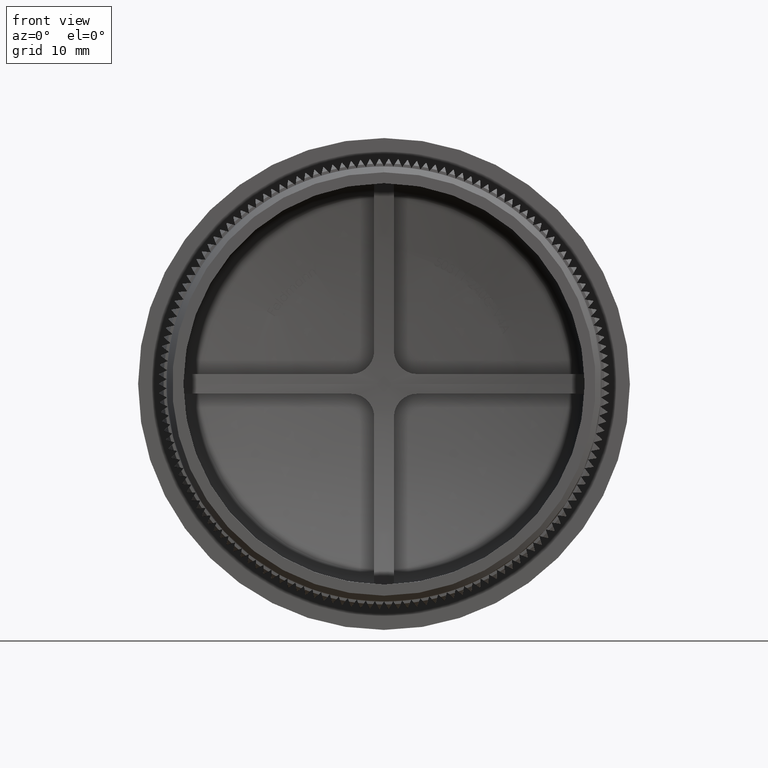
[diagram: clean part render]
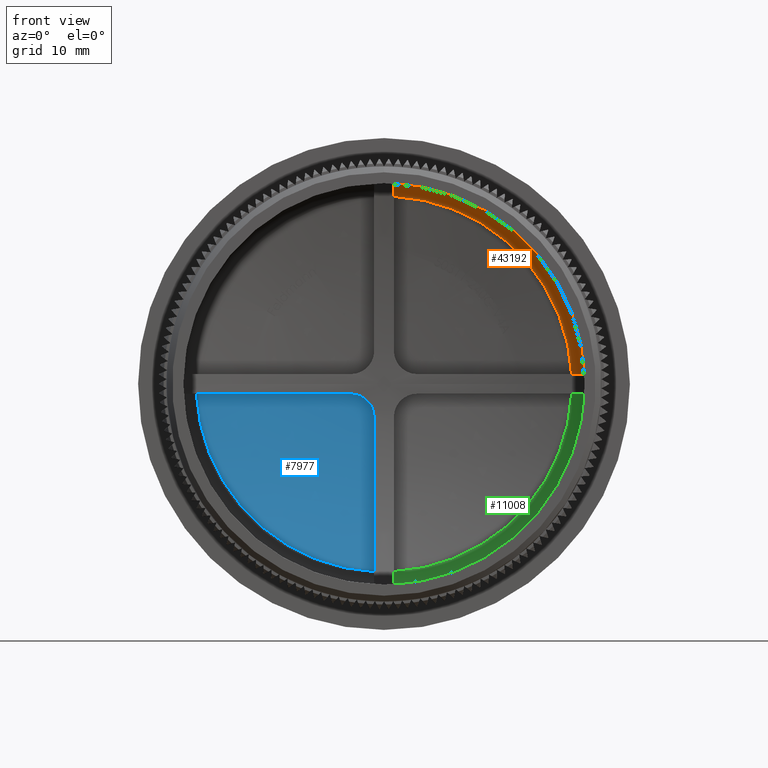
[diagram: same view with three faces highlighted in distinct colors, each labeled with its STEP entity id]
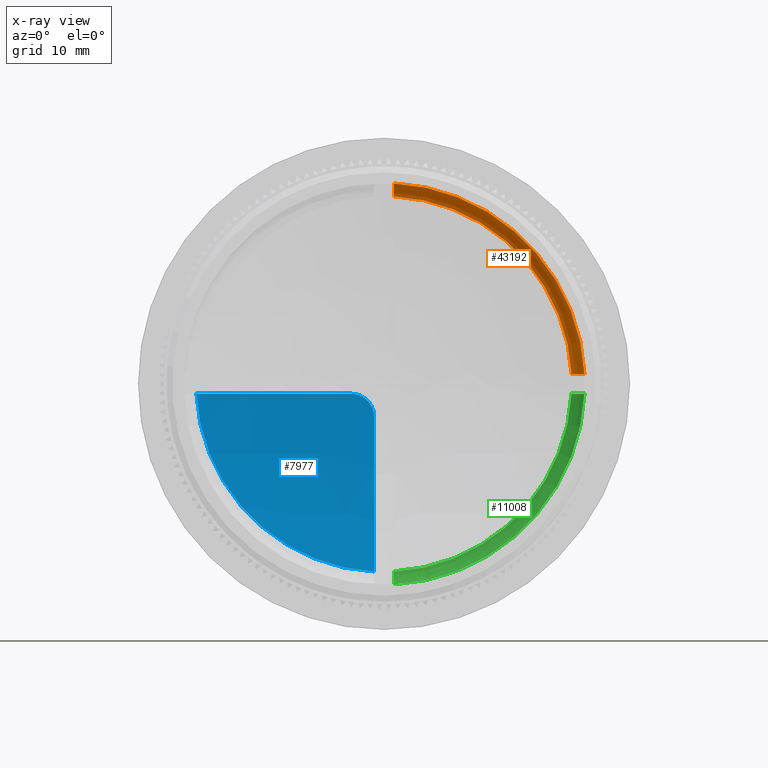
[diagram: x-ray of the same camera — body ghosted, the three highlighted faces saturated]
A machine part, front view with three faces highlighted in distinct colors.
The next image is the same camera in x-ray (body ghosted, the three faces saturated) — at least one of them is partly hidden behind the body in this view.
Their STEP definitions:

[orange] entity #43192 — the highlighted toroidal blend (fillet) surface has major radius 15.8 mm and minor (blend) radius 1.5 mm.
#3102 = CARTESIAN_POINT ( 'NONE',  ( 17.27910587964550300, 13.03454946691719700, 0.8500000000000000900 ) ) ;
#3398 = CARTESIAN_POINT ( 'NONE',  ( 16.75150424406135500, 14.02509194983895900, 0.8499999999999999800 ) ) ;
#4057 = CARTESIAN_POINT ( 'NONE',  ( 16.17451809435572200, 14.31863615773799100, 0.8499999999999999800 ) ) ;
#4351 = CIRCLE ( 'NONE', #14428, 17.29999999999999700 ) ;
#6027 = ORIENTED_EDGE ( 'NONE', *, *, #14768, .T. ) ;
#6493 = DIRECTION ( 'NONE',  ( 0.0000000000000000000, 0.0000000000000000000, -1.000000000000000000 ) ) ;
#6693 = CARTESIAN_POINT ( 'NONE',  ( 17.25208929197144800, 13.19854717968413400, 0.8500000000000000900 ) ) ;
#8376 = CARTESIAN_POINT ( 'NONE',  ( 17.27910587964550600, 12.87208155133243900, 0.8500000000000014200 ) ) ;
#8531 = CARTESIAN_POINT ( 'NONE',  ( 0.0000000000000000000, 14.31863615773802700, 0.0000000000000000000 ) ) ;
#9149 = CARTESIAN_POINT ( 'NONE',  ( 0.0000000000000000000, 12.87208155133243900, 0.0000000000000000000 ) ) ;
#10205 = CARTESIAN_POINT ( 'NONE',  ( 16.87274273745515900, 13.91091311740873100, 0.8500000000000000900 ) ) ;
#10516 = VERTEX_POINT ( 'NONE', #4057 ) ;
#11081 = CIRCLE ( 'NONE', #31480, 16.19683720930232000 ) ;
#11182 = CARTESIAN_POINT ( 'NONE',  ( 0.8500000000000043100, 14.23238707079174500, 16.48934788391042600 ) ) ;
#11931 = DIRECTION ( 'NONE',  ( -0.0000000000000000000, -1.000000000000000000, -0.0000000000000000000 ) ) ;
#12284 = B_SPLINE_CURVE_WITH_KNOTS ( 'NONE', 3,
 ( #34560, #38006, #41218, #3398, #10205, #20912, #23819, #6693, #3102, #27612 ),
 .UNSPECIFIED., .F., .F.,
 ( 4, 2, 2, 2, 4 ),
 ( 0.002250064617710046700, 0.002736585393792514800, 0.003223106169874983300, 0.003709626945957451800, 0.004196147722039919900 ),
 .UNSPECIFIED. ) ;
#13266 = ORIENTED_EDGE ( 'NONE', *, *, #16697, .T. ) ;
#13643 = AXIS2_PLACEMENT_3D ( 'NONE', #9149, #11931, #18997 ) ;
#14094 = CARTESIAN_POINT ( 'NONE',  ( 0.8500000000000042000, 14.31863615773799100, 16.17451809435572200 ) ) ;
#14428 = AXIS2_PLACEMENT_3D ( 'NONE', #19964, #27116, #6493 ) ;
#14768 = EDGE_CURVE ( 'NONE', #33455, #44108, #40512, .T. ) ;
#15072 = TOROIDAL_SURFACE ( 'NONE', #13643, 15.79999999999999500, 1.500000000000000000 ) ;
#15604 = EDGE_LOOP ( 'NONE', ( #31851, #6027, #40200, #13266 ) ) ;
#16697 = EDGE_CURVE ( 'NONE', #10516, #41220, #12284, .T. ) ;
#18997 = DIRECTION ( 'NONE',  ( 0.0000000000000000000, 0.0000000000000000000, -1.000000000000000000 ) ) ;
#19964 = CARTESIAN_POINT ( 'NONE',  ( 0.0000000000000000000, 12.87208155133243900, 0.0000000000000000000 ) ) ;
#20912 = CARTESIAN_POINT ( 'NONE',  ( 17.06977151505013900, 13.65300020471787900, 0.8499999999999999800 ) ) ;
#23819 = CARTESIAN_POINT ( 'NONE',  ( 17.14800501781711300, 13.50614345628086900, 0.8500000000000000900 ) ) ;
#25332 = FACE_OUTER_BOUND ( 'NONE', #15604, .T. ) ;
#27116 = DIRECTION ( 'NONE',  ( 0.0000000000000000000, 1.000000000000000000, 0.0000000000000000000 ) ) ;
#27612 = CARTESIAN_POINT ( 'NONE',  ( 17.27910587964550600, 12.87208155133243900, 0.8500000000000014200 ) ) ;
#27850 = CARTESIAN_POINT ( 'NONE',  ( 0.8500000000000043100, 13.19719481279919100, 17.27910587964545300 ) ) ;
#29010 = DIRECTION ( 'NONE',  ( -0.0000000000000000000, -1.000000000000000000, -0.0000000000000000000 ) ) ;
#31480 = AXIS2_PLACEMENT_3D ( 'NONE', #8531, #29010, #42881 ) ;
#31851 = ORIENTED_EDGE ( 'NONE', *, *, #40427, .F. ) ;
#31920 = CARTESIAN_POINT ( 'NONE',  ( 0.8500000000000043100, 14.04079092929593700, 16.77351254898125500 ) ) ;
#32831 = EDGE_CURVE ( 'NONE', #10516, #44108, #11081, .T. ) ;
#33455 = VERTEX_POINT ( 'NONE', #33587 ) ;
#33587 = CARTESIAN_POINT ( 'NONE',  ( 0.8500000000000045300, 12.87208155133281700, 17.27910587964550600 ) ) ;
#34560 = CARTESIAN_POINT ( 'NONE',  ( 16.17451809435572200, 14.31863615773799100, 0.8499999999999999800 ) ) ;
#37454 = CARTESIAN_POINT ( 'NONE',  ( 0.8500000000000042000, 14.31863615773799100, 16.17451809435572200 ) ) ;
#38006 = CARTESIAN_POINT ( 'NONE',  ( 16.33093632640904500, 14.27578465465936100, 0.8499999999999999800 ) ) ;
#38094 = CARTESIAN_POINT ( 'NONE',  ( 0.8500000000000046400, 13.52319186537919500, 17.16894862938914200 ) ) ;
#38387 = CARTESIAN_POINT ( 'NONE',  ( 0.8500000000000045300, 12.87208155133281700, 17.27910587964550600 ) ) ;
#40200 = ORIENTED_EDGE ( 'NONE', *, *, #32831, .F. ) ;
#40427 = EDGE_CURVE ( 'NONE', #33455, #41220, #4351, .T. ) ;
#40512 = B_SPLINE_CURVE_WITH_KNOTS ( 'NONE', 3,
 ( #38387, #27850, #38094, #31920, #11182, #14094 ),
 .UNSPECIFIED., .F., .F.,
 ( 4, 2, 4 ),
 ( 0.005190190413903147800, 0.006163343080821713900, 0.007136495747740279900 ),
 .UNSPECIFIED. ) ;
#41218 = CARTESIAN_POINT ( 'NONE',  ( 16.48240909840739100, 14.20632826286834100, 0.8500000000000000900 ) ) ;
#41220 = VERTEX_POINT ( 'NONE', #8376 ) ;
#42881 = DIRECTION ( 'NONE',  ( 0.0000000000000000000, 0.0000000000000000000, -1.000000000000000000 ) ) ;
#43192 = ADVANCED_FACE ( 'NONE', ( #25332 ), #15072, .F. ) ;
#44108 = VERTEX_POINT ( 'NONE', #37454 ) ;

[blue] entity #7977 — the highlighted spherical surface has radius 61.2222 mm.
#302 = CARTESIAN_POINT ( 'NONE',  ( -0.9520251755178784600, 16.45297949896887200, -2.205904494118842200 ) ) ;
#339 = DIRECTION ( 'NONE',  ( -0.0000000000000000000, -0.0000000000000000000, 1.000000000000000000 ) ) ;
#2224 = EDGE_CURVE ( 'NONE', #41129, #15638, #30515, .T. ) ;
#3604 = CARTESIAN_POINT ( 'NONE',  ( -1.343066461076759500, 16.46631547904791400, -1.528573505136084300 ) ) ;
#3755 = CARTESIAN_POINT ( 'NONE',  ( -0.9136368699616112000, 16.44885399113282500, -2.332845844020622600 ) ) ;
#3874 = EDGE_CURVE ( 'NONE', #17814, #41129, #10917, .T. ) ;
#6129 = EDGE_LOOP ( 'NONE', ( #40651, #8689, #24266, #20513 ) ) ;
#7245 = CARTESIAN_POINT ( 'NONE',  ( -0.8500000000000003100, -44.72222222222214300, -2.412035669782916800E-016 ) ) ;
#7502 = CARTESIAN_POINT ( 'NONE',  ( -1.113640534400620200, 16.46207977236227300, -1.848935975390399100 ) ) ;
#7827 = AXIS2_PLACEMENT_3D ( 'NONE', #32070, #24919, #38676 ) ;
#7977 = ADVANCED_FACE ( 'NONE', ( #42014 ), #33384, .F. ) ;
#8689 = ORIENTED_EDGE ( 'NONE', *, *, #2224, .T. ) ;
#10415 = AXIS2_PLACEMENT_3D ( 'NONE', #37356, #30443, #13044 ) ;
#10511 = EDGE_CURVE ( 'NONE', #34223, #17814, #22440, .T. ) ;
#10917 = CIRCLE ( 'NONE', #34327, 61.21632130263260100 ) ;
#10999 = CARTESIAN_POINT ( 'NONE',  ( -1.619688011342696400, 16.46632482781389200, -1.251751240011013300 ) ) ;
#13044 = DIRECTION ( 'NONE',  ( 1.000000000000000000, 0.0000000000000000000, 0.0000000000000000000 ) ) ;
#13819 = DIRECTION ( 'NONE',  ( -1.000000000000000000, -5.327468337592096000E-015, 0.0000000000000000000 ) ) ;
#14360 = CARTESIAN_POINT ( 'NONE',  ( -1.258648505675312300, 16.46545210911490600, -1.631528089509356500 ) ) ;
#14515 = CARTESIAN_POINT ( 'NONE',  ( -2.849999999999999600, 16.42772049097383700, -0.8499999999999999800 ) ) ;
#15638 = VERTEX_POINT ( 'NONE', #32902 ) ;
#17695 = DIRECTION ( 'NONE',  ( 1.000000000000000000, 0.0000000000000000000, 2.837689023274018900E-016 ) ) ;
#17731 = CARTESIAN_POINT ( 'NONE',  ( -0.8499999999999957600, 14.31863615773799100, -16.17451809435572200 ) ) ;
#17814 = VERTEX_POINT ( 'NONE', #17731 ) ;
#18160 = EDGE_CURVE ( 'NONE', #15638, #34223, #43009, .T. ) ;
#20513 = ORIENTED_EDGE ( 'NONE', *, *, #10511, .T. ) ;
#22440 = CIRCLE ( 'NONE', #7827, 16.19683720930232000 ) ;
#24266 = ORIENTED_EDGE ( 'NONE', *, *, #18160, .T. ) ;
#24600 = CARTESIAN_POINT ( 'NONE',  ( -0.8499999999999995300, 16.42772049097383700, -2.849999999999999200 ) ) ;
#24919 = DIRECTION ( 'NONE',  ( -0.0000000000000000000, -1.000000000000000000, -0.0000000000000000000 ) ) ;
#27966 = CARTESIAN_POINT ( 'NONE',  ( -1.052278977392328200, 16.45958803605341500, -1.963790893784841200 ) ) ;
#28006 = CARTESIAN_POINT ( 'NONE',  ( 0.0000000000000000000, -44.72222222222214300, -0.8499999999999999800 ) ) ;
#28256 = CARTESIAN_POINT ( 'NONE',  ( -0.8499999999999995300, 16.42772049097383700, -2.849999999999999200 ) ) ;
#30443 = DIRECTION ( 'NONE',  ( 0.0000000000000000000, 0.0000000000000000000, 1.000000000000000000 ) ) ;
#30515 = B_SPLINE_CURVE_WITH_KNOTS ( 'NONE', 3,
 ( #28256, #35054, #31747, #3755, #302, #27966, #7502, #14360, #3604, #10999, #35199, #34771, #31895, #14515 ),
 .UNSPECIFIED., .F., .F.,
 ( 4, 2, 2, 2, 2, 2, 4 ),
 ( 0.0000000000000000000, 0.0003906973027053128200, 0.0007813946054106256400, 0.001172091908115938500, 0.001562789210821251300, 0.002344183816231876900, 0.003125578421642502500 ),
 .UNSPECIFIED. ) ;
#31747 = CARTESIAN_POINT ( 'NONE',  ( -0.8629323926376395400, 16.43931614412935400, -2.588250279484328100 ) ) ;
#31895 = CARTESIAN_POINT ( 'NONE',  ( -2.586075760088596600, 16.44002114164288700, -0.8500000000000000900 ) ) ;
#32070 = CARTESIAN_POINT ( 'NONE',  ( 0.0000000000000000000, 14.31863615773802700, 0.0000000000000000000 ) ) ;
#32096 = DIRECTION ( 'NONE',  ( -2.833759754038349200E-016, 1.416879877019174500E-014, 1.000000000000000000 ) ) ;
#32902 = CARTESIAN_POINT ( 'NONE',  ( -2.849999999999999600, 16.42772049097383700, -0.8499999999999999800 ) ) ;
#33384 = SPHERICAL_SURFACE ( 'NONE', #10415, 61.22222222222213600 ) ;
#34223 = VERTEX_POINT ( 'NONE', #34874 ) ;
#34327 = AXIS2_PLACEMENT_3D ( 'NONE', #7245, #17695, #32096 ) ;
#34771 = CARTESIAN_POINT ( 'NONE',  ( -2.323685398075382700, 16.44977635731517300, -0.9030034698745206300 ) ) ;
#34874 = CARTESIAN_POINT ( 'NONE',  ( -16.17451809435572200, 14.31863615773799100, -0.8499999999999999800 ) ) ;
#35054 = CARTESIAN_POINT ( 'NONE',  ( -0.8499999999999997600, 16.43387076884863900, -2.718038898346037100 ) ) ;
#35199 = CARTESIAN_POINT ( 'NONE',  ( -1.842704154620909500, 16.46288133036085800, -1.102671287821965300 ) ) ;
#36230 = AXIS2_PLACEMENT_3D ( 'NONE', #28006, #339, #13819 ) ;
#37356 = CARTESIAN_POINT ( 'NONE',  ( 0.0000000000000000000, -44.72222222222214300, 0.0000000000000000000 ) ) ;
#38676 = DIRECTION ( 'NONE',  ( 0.0000000000000000000, 0.0000000000000000000, -1.000000000000000000 ) ) ;
#40651 = ORIENTED_EDGE ( 'NONE', *, *, #3874, .T. ) ;
#41129 = VERTEX_POINT ( 'NONE', #24600 ) ;
#42014 = FACE_OUTER_BOUND ( 'NONE', #6129, .T. ) ;
#43009 = CIRCLE ( 'NONE', #36230, 61.21632130263260100 ) ;

[green] entity #11008 — the highlighted toroidal blend (fillet) surface has major radius 15.8 mm and minor (blend) radius 1.5 mm.
#98 = B_SPLINE_CURVE_WITH_KNOTS ( 'NONE', 3,
 ( #36130, #39134, #29344, #19013, #22643, #12687, #2544, #19159 ),
 .UNSPECIFIED., .F., .F.,
 ( 4, 2, 2, 4 ),
 ( 0.008385490219133552200, 0.008871647470233910700, 0.009357804721334269200, 0.01033011922353499700 ),
 .UNSPECIFIED. ) ;
#630 = CARTESIAN_POINT ( 'NONE',  ( 17.16894862938914200, 13.52319186537920000, -0.8500000000000000900 ) ) ;
#947 = VERTEX_POINT ( 'NONE', #28971 ) ;
#1356 = DIRECTION ( 'NONE',  ( 0.0000000000000000000, 0.0000000000000000000, -1.000000000000000000 ) ) ;
#2544 = CARTESIAN_POINT ( 'NONE',  ( 0.8500000000000045300, 13.19881597091184700, -17.27910587964551000 ) ) ;
#2570 = ORIENTED_EDGE ( 'NONE', *, *, #11468, .T. ) ;
#2704 = VERTEX_POINT ( 'NONE', #38852 ) ;
#4452 = EDGE_CURVE ( 'NONE', #2704, #947, #16851, .T. ) ;
#8812 = VERTEX_POINT ( 'NONE', #13196 ) ;
#9406 = B_SPLINE_CURVE_WITH_KNOTS ( 'NONE', 3,
 ( #11032, #41747, #630, #11184, #21011, #35231 ),
 .UNSPECIFIED., .F., .F.,
 ( 4, 2, 4 ),
 ( 0.005190190413903151200, 0.006163343080821719900, 0.007136495747740288600 ),
 .UNSPECIFIED. ) ;
#11008 = ADVANCED_FACE ( 'NONE', ( #13361 ), #21388, .F. ) ;
#11032 = CARTESIAN_POINT ( 'NONE',  ( 17.27910587964550600, 12.87208155133281700, -0.8499999999999999800 ) ) ;
#11184 = CARTESIAN_POINT ( 'NONE',  ( 16.77351254898125500, 14.04079092929593700, -0.8499999999999999800 ) ) ;
#11468 = EDGE_CURVE ( 'NONE', #8812, #947, #98, .T. ) ;
#11652 = CARTESIAN_POINT ( 'NONE',  ( 0.0000000000000000000, 12.87208155133243900, 0.0000000000000000000 ) ) ;
#11805 = DIRECTION ( 'NONE',  ( 8.881784197001254300E-016, 0.0000000000000000000, -1.000000000000000000 ) ) ;
#12133 = CARTESIAN_POINT ( 'NONE',  ( 0.0000000000000000000, 12.87208155133243900, 0.0000000000000000000 ) ) ;
#12402 = CIRCLE ( 'NONE', #41567, 16.19683720930232000 ) ;
#12687 = CARTESIAN_POINT ( 'NONE',  ( 0.8500000000000045300, 13.52023473482618800, -17.17091767978519100 ) ) ;
#13196 = CARTESIAN_POINT ( 'NONE',  ( 0.8500000000000042000, 14.31863615773799100, -16.17451809435572200 ) ) ;
#13361 = FACE_OUTER_BOUND ( 'NONE', #41935, .T. ) ;
#16328 = ORIENTED_EDGE ( 'NONE', *, *, #4452, .F. ) ;
#16851 = CIRCLE ( 'NONE', #41007, 17.29999999999999700 ) ;
#17594 = ORIENTED_EDGE ( 'NONE', *, *, #37784, .F. ) ;
#18251 = DIRECTION ( 'NONE',  ( -0.0000000000000000000, -1.000000000000000000, -0.0000000000000000000 ) ) ;
#19013 = CARTESIAN_POINT ( 'NONE',  ( 0.8500000000000042000, 14.02538412887917700, -16.75114494855209900 ) ) ;
#19159 = CARTESIAN_POINT ( 'NONE',  ( 0.8500000000000024200, 12.87208155133243900, -17.27910587964550600 ) ) ;
#21011 = CARTESIAN_POINT ( 'NONE',  ( 16.48934788391042600, 14.23238707079174500, -0.8500000000000000900 ) ) ;
#21388 = TOROIDAL_SURFACE ( 'NONE', #29340, 15.79999999999999500, 1.500000000000000000 ) ;
#22643 = CARTESIAN_POINT ( 'NONE',  ( 0.8500000000000043100, 13.91161522636928200, -16.87234476373527400 ) ) ;
#24053 = ORIENTED_EDGE ( 'NONE', *, *, #32189, .T. ) ;
#25287 = DIRECTION ( 'NONE',  ( 0.0000000000000000000, 0.0000000000000000000, -1.000000000000000000 ) ) ;
#28971 = CARTESIAN_POINT ( 'NONE',  ( 0.8500000000000024200, 12.87208155133243900, -17.27910587964550600 ) ) ;
#29340 = AXIS2_PLACEMENT_3D ( 'NONE', #12133, #29376, #25287 ) ;
#29344 = CARTESIAN_POINT ( 'NONE',  ( 0.8500000000000040900, 14.20646735811253900, -16.48212787097525100 ) ) ;
#29376 = DIRECTION ( 'NONE',  ( -0.0000000000000000000, -1.000000000000000000, -0.0000000000000000000 ) ) ;
#32189 = EDGE_CURVE ( 'NONE', #2704, #41756, #9406, .T. ) ;
#32236 = DIRECTION ( 'NONE',  ( 0.0000000000000000000, 1.000000000000000000, 0.0000000000000000000 ) ) ;
#33039 = CARTESIAN_POINT ( 'NONE',  ( 16.17451809435572200, 14.31863615773799100, -0.8499999999999999800 ) ) ;
#35231 = CARTESIAN_POINT ( 'NONE',  ( 16.17451809435572200, 14.31863615773799100, -0.8499999999999999800 ) ) ;
#36130 = CARTESIAN_POINT ( 'NONE',  ( 0.8500000000000042000, 14.31863615773799100, -16.17451809435572200 ) ) ;
#37784 = EDGE_CURVE ( 'NONE', #8812, #41756, #12402, .T. ) ;
#38852 = CARTESIAN_POINT ( 'NONE',  ( 17.27910587964550600, 12.87208155133281700, -0.8499999999999999800 ) ) ;
#38970 = CARTESIAN_POINT ( 'NONE',  ( 0.0000000000000000000, 14.31863615773802700, 0.0000000000000000000 ) ) ;
#39134 = CARTESIAN_POINT ( 'NONE',  ( 0.8500000000000039700, 14.27577224091141000, -16.33098163955720800 ) ) ;
#41007 = AXIS2_PLACEMENT_3D ( 'NONE', #11652, #32236, #11805 ) ;
#41567 = AXIS2_PLACEMENT_3D ( 'NONE', #38970, #18251, #1356 ) ;
#41747 = CARTESIAN_POINT ( 'NONE',  ( 17.27910587964545300, 13.19719481279918900, -0.8499999999999999800 ) ) ;
#41756 = VERTEX_POINT ( 'NONE', #33039 ) ;
#41935 = EDGE_LOOP ( 'NONE', ( #16328, #24053, #17594, #2570 ) ) ;